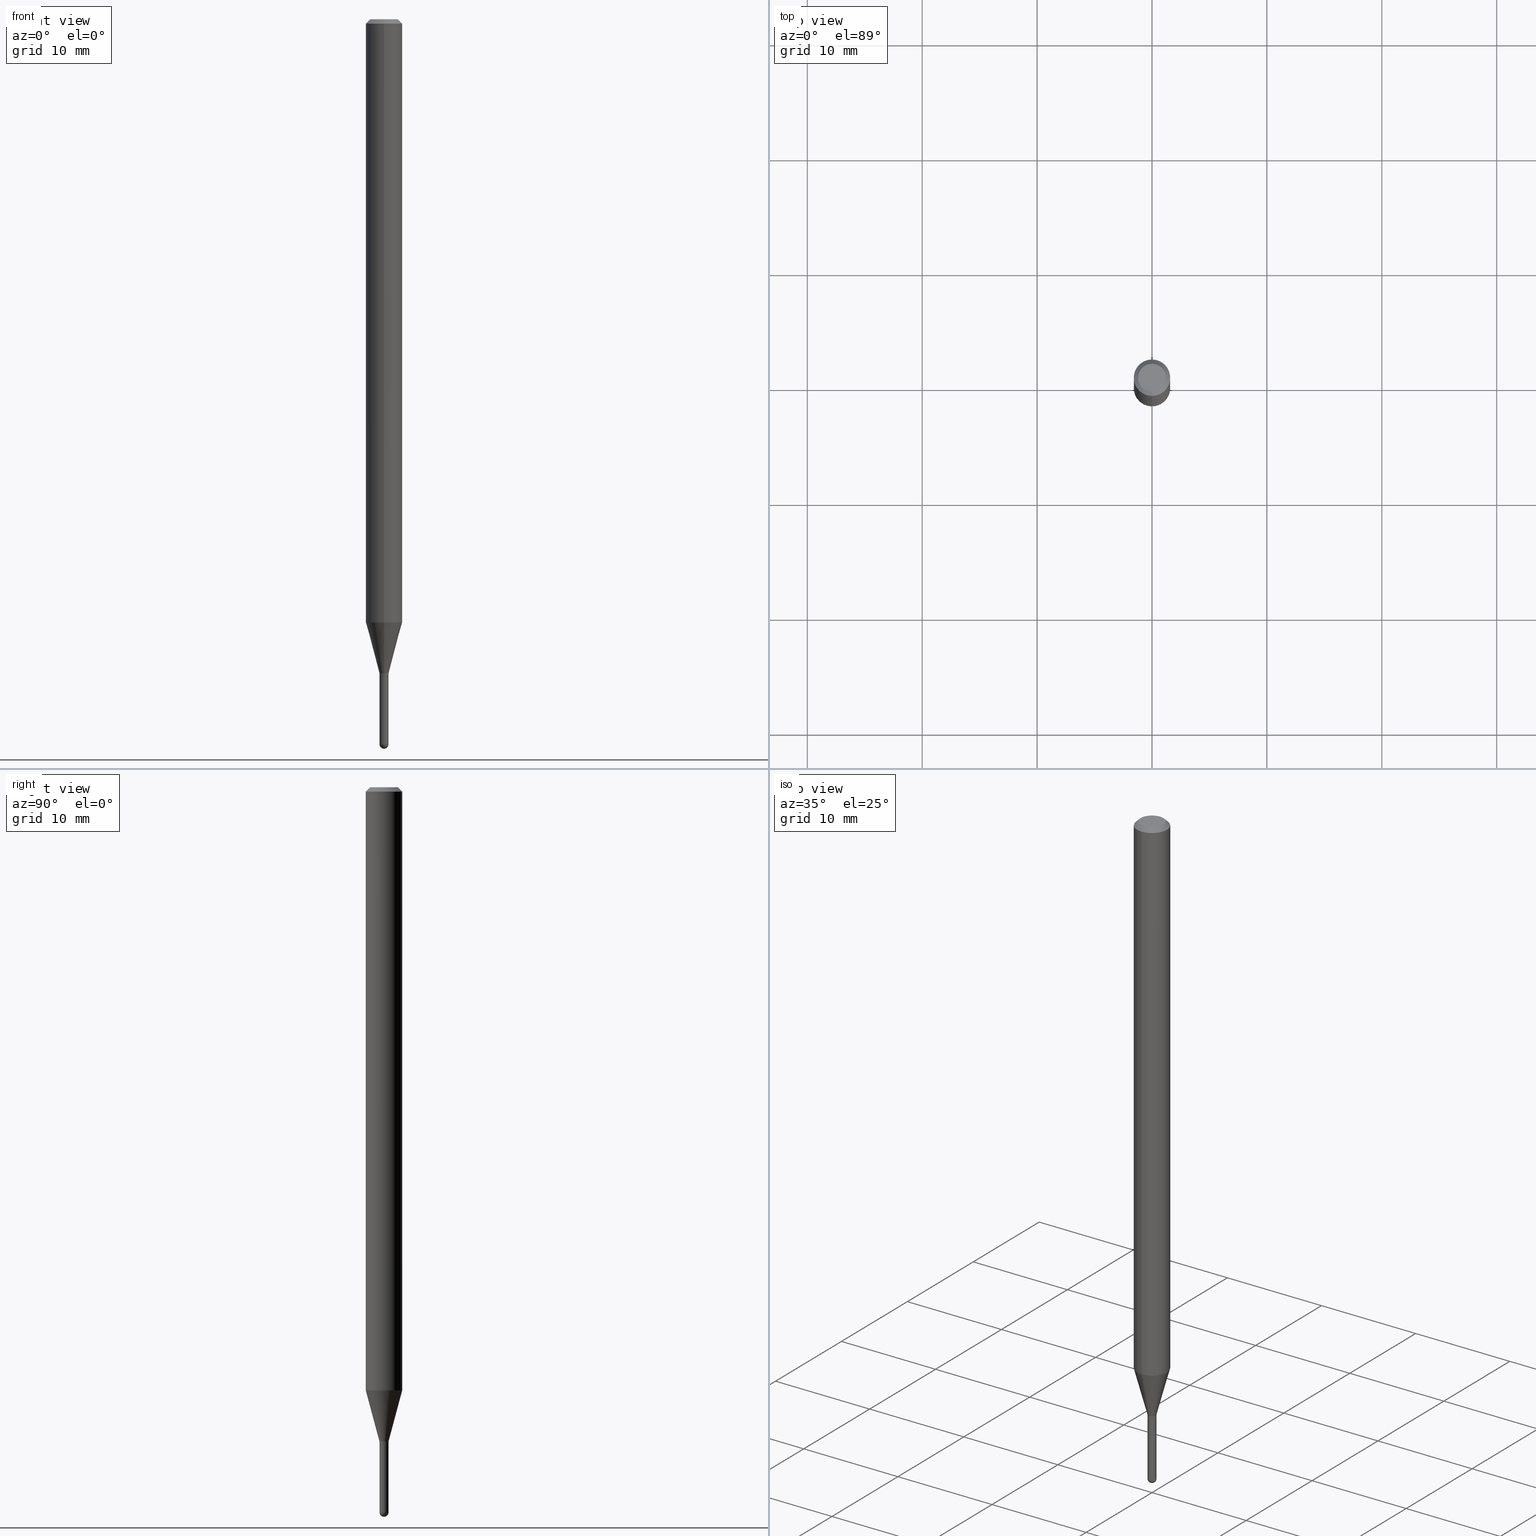
[diagram: canonical four-view strip — front | top / right | iso, engineering-drawing reading convention]
A machine part, canonical four-view strip (front | top / right | iso — engineering-drawing reading convention). The complete STEP part file that produces these views, byte-faithful:
ISO-10303-21;
HEADER;
FILE_DESCRIPTION (( 'STEP AP203' ),
    '1' );
FILE_NAME ('02752.STEP',
    '2024-03-07T21:13:44',
    ( '' ),
    ( '' ),
    'SwSTEP 2.0',
    'SolidWorks 2023',
    '' );
FILE_SCHEMA (( 'CONFIG_CONTROL_DESIGN' ));
ENDSEC;

DATA;
#1 = ORIENTED_EDGE ( 'NONE', *, *, #382, .F. ) ;
#2 = PERSON ( 'UNSPECIFIED', 'UNSPECIFIED', 'UNSPECIFIED', ('UNSPECIFIED'), ('UNSPECIFIED'), ('UNSPECIFIED') ) ;
#3 = VERTEX_POINT ( 'NONE', #409 ) ;
#4 = PRODUCT ( '02752', '02752', '', ( #423 ) ) ;
#5 = ORIENTED_EDGE ( 'NONE', *, *, #79, .F. ) ;
#6 = CIRCLE ( 'NONE', #80, 0.06250000000000000000 ) ;
#7 = LOCAL_TIME ( 16, 13, 44.00000000000000000, #317 ) ;
#8 = ORIENTED_EDGE ( 'NONE', *, *, #330, .T. ) ;
#9 = CARTESIAN_POINT ( 'NONE',  ( 5.507174884870888320E-29, -7.862845857316731752E-15, -2.251999999999999780 ) ) ;
#10 = ORIENTED_EDGE ( 'NONE', *, *, #213, .T. ) ;
#11 = APPROVAL ( #115, 'UNSPECIFIED' ) ;
#12 = CIRCLE ( 'NONE', #184, 0.04749999999999999362 ) ;
#13 = CC_DESIGN_DATE_AND_TIME_ASSIGNMENT ( #122, #74, ( #390 ) ) ;
#14 = CARTESIAN_POINT ( 'NONE',  ( 6.075767248966972494E-29, -8.674585386355795965E-15, -2.484500000000000153 ) ) ;
#15 = ORIENTED_EDGE ( 'NONE', *, *, #321, .T. ) ;
#16 = APPLICATION_CONTEXT ( 'configuration controlled 3d designs of mechanical parts and assemblies' ) ;
#17 = ORIENTED_EDGE ( 'NONE', *, *, #237, .T. ) ;
#18 = CARTESIAN_POINT ( 'NONE',  ( 4.440892098501133991E-16, 0.06249999999999993755, -0.01500000000000054588 ) ) ;
#19 = CARTESIAN_POINT ( 'NONE',  ( 0.01550000000000000162, -1.082359215041371409E-16, 7.558074002483700794E-31 ) ) ;
#20 = AXIS2_PLACEMENT_3D ( 'NONE', #127, #496, #385 ) ;
#21 = CARTESIAN_POINT ( 'NONE',  ( 0.000000000000000000, 0.000000000000000000, 0.000000000000000000 ) ) ;
#22 = CYLINDRICAL_SURFACE ( 'NONE', #512, 0.01550000000000000162 ) ;
#23 = DIRECTION ( 'NONE',  ( -1.000000000000000000, 6.982962677686265922E-15, -4.883557194083112340E-29 ) ) ;
#24 = CARTESIAN_POINT ( 'NONE',  ( -1.082359215040799855E-16, -0.01550000000000756502, -2.251500000000000501 ) ) ;
#25 = DIRECTION ( 'NONE',  ( -6.982962677686265922E-15, -1.000000000000000000, 0.000000000000000000 ) ) ;
#26 = ADVANCED_FACE ( 'NONE', ( #50 ), #93, .F. ) ;
#27 = PERSON_AND_ORGANIZATION ( #2, #46 ) ;
#28 = AXIS2_PLACEMENT_3D ( 'NONE', #116, #355, #82 ) ;
#29 = EDGE_CURVE ( 'NONE', #136, #60, #338, .T. ) ;
#30 = DIRECTION ( 'NONE',  ( -6.982962677686265922E-15, -1.000000000000000000, 0.000000000000000000 ) ) ;
#31 = CARTESIAN_POINT ( 'NONE',  ( 3.668189310526870612E-31, -5.237241912067210994E-17, -0.01500000000000032904 ) ) ;
#32 = PERSON_AND_ORGANIZATION ( #2, #46 ) ;
#33 = ADVANCED_FACE ( 'NONE', ( #342 ), #22, .T. ) ;
#34 = DIRECTION ( 'NONE',  ( -6.982962677686265922E-15, -1.000000000000000000, 4.370956789862821150E-15 ) ) ;
#35 = PERSON_AND_ORGANIZATION_ROLE ( 'classification_officer' ) ;
#36 = CARTESIAN_POINT ( 'NONE',  ( 4.364351673553919652E-16, 0.06249999999999995143, -0.01500000000000054588 ) ) ;
#37 = VECTOR ( 'NONE', #250, 39.37007874015748143 ) ;
#38 = CIRCLE ( 'NONE', #367, 0.01550000000000000336 ) ;
#39 = CARTESIAN_POINT ( 'NONE',  ( 5.505952155100712450E-29, -7.861100110012711568E-15, -2.251500000000000501 ) ) ;
#40 = EDGE_CURVE ( 'NONE', #254, #178, #12, .T. ) ;
#41 = ORIENTED_EDGE ( 'NONE', *, *, #382, .T. ) ;
#42 = CARTESIAN_POINT ( 'NONE',  ( -1.082359215040798499E-16, -0.01550000000000747828, -2.241999999999999993 ) ) ;
#43 = ORIENTED_EDGE ( 'NONE', *, *, #166, .T. ) ;
#44 = ORIENTED_EDGE ( 'NONE', *, *, #349, .T. ) ;
#45 = DIRECTION ( 'NONE',  ( -2.445459540351193417E-29, 3.491494608044730760E-15, 1.000000000000000000 ) ) ;
#46 = ORGANIZATION ( 'UNSPECIFIED', 'UNSPECIFIED', '' ) ;
#47 = CIRCLE ( 'NONE', #120, 0.01550000000000000336 ) ;
#48 = CC_DESIGN_SECURITY_CLASSIFICATION ( #390, ( #438 ) ) ;
#49 = ORIENTED_EDGE ( 'NONE', *, *, #370, .F. ) ;
#50 = FACE_OUTER_BOUND ( 'NONE', #256, .T. ) ;
#51 = ORIENTED_EDGE ( 'NONE', *, *, #252, .T. ) ;
#52 = DIRECTION ( 'NONE',  ( -2.445459540351193417E-29, 3.491494608044730760E-15, 1.000000000000000000 ) ) ;
#53 = DIRECTION ( 'NONE',  ( -6.982962677686265922E-15, -1.000000000000000000, 0.000000000000000000 ) ) ;
#54 = ORIENTED_EDGE ( 'NONE', *, *, #159, .T. ) ;
#55 = CARTESIAN_POINT ( 'NONE',  ( 0.000000000000000000, 0.000000000000000000, 0.000000000000000000 ) ) ;
#56 = ORIENTED_EDGE ( 'NONE', *, *, #489, .F. ) ;
#57 = APPLICATION_CONTEXT ( 'configuration controlled 3d designs of mechanical parts and assemblies' ) ;
#58 = VERTEX_POINT ( 'NONE', #379 ) ;
#59 = CALENDAR_DATE ( 2024, 7, 3 ) ;
#60 = VERTEX_POINT ( 'NONE', #18 ) ;
#61 = DIRECTION ( 'NONE',  ( 6.982962677686265133E-15, 1.000000000000000000, 0.000000000000000000 ) ) ;
#62 = EDGE_CURVE ( 'NONE', #172, #165, #143, .T. ) ;
#63 = AXIS2_PLACEMENT_3D ( 'NONE', #14, #138, #452 ) ;
#64 = CARTESIAN_POINT ( 'NONE',  ( 1.101341240428130259E-16, 0.01549999999999964947, -5.411816642469210326E-17 ) ) ;
#65 = APPROVAL_STATUS ( 'not_yet_approved' ) ;
#66 = DIRECTION ( 'NONE',  ( -2.445468806185136877E-29, 3.491481338843145188E-15, 1.000000000000000000 ) ) ;
#67 = DIRECTION ( 'NONE',  ( -6.982962677686265922E-15, -1.000000000000000000, 3.483106191921935554E-15 ) ) ;
#68 = EDGE_CURVE ( 'NONE', #432, #247, #185, .T. ) ;
#69 = AXIS2_PLACEMENT_3D ( 'NONE', #119, #114, #233 ) ;
#70 = CARTESIAN_POINT ( 'NONE',  ( 6.075767248966972494E-29, -8.674585386355795965E-15, -2.484500000000000153 ) ) ;
#71 = PERSON_AND_ORGANIZATION ( #2, #46 ) ;
#72 = FACE_OUTER_BOUND ( 'NONE', #453, .T. ) ;
#73 = DIRECTION ( 'NONE',  ( 6.982962677686265922E-15, 1.000000000000000000, 0.000000000000000000 ) ) ;
#74 = DATE_TIME_ROLE ( 'classification_date' ) ;
#75 = CARTESIAN_POINT ( 'NONE',  ( 8.024685425782837780E-45, -1.145721097939416825E-30, -3.281463174250844337E-16 ) ) ;
#76 = APPLICATION_PROTOCOL_DEFINITION ( 'international standard', 'config_control_design', 1994, #16 ) ;
#77 = DIRECTION ( 'NONE',  ( -6.982962677686265922E-15, -1.000000000000000000, 3.491494608044730760E-15 ) ) ;
#78 = DIRECTION ( 'NONE',  ( -2.445459540351193417E-29, 3.491494608044730760E-15, 1.000000000000000000 ) ) ;
#79 = EDGE_CURVE ( 'NONE', #253, #165, #292, .T. ) ;
#80 = AXIS2_PLACEMENT_3D ( 'NONE', #118, #505, #509 ) ;
#81 = CIRCLE ( 'NONE', #222, 0.01549999999999964947 ) ;
#82 = DIRECTION ( 'NONE',  ( -6.982962677686265922E-15, -1.000000000000000000, 3.491494608044730760E-15 ) ) ;
#83 = ORIENTED_EDGE ( 'NONE', *, *, #124, .F. ) ;
#84 = ORIENTED_EDGE ( 'NONE', *, *, #447, .T. ) ;
#85 = EDGE_LOOP ( 'NONE', ( #49, #445, #54, #87 ) ) ;
#86 = EDGE_CURVE ( 'NONE', #133, #369, #219, .T. ) ;
#87 = ORIENTED_EDGE ( 'NONE', *, *, #349, .F. ) ;
#88 = EDGE_LOOP ( 'NONE', ( #15, #331, #175, #336 ) ) ;
#89 = CIRCLE ( 'NONE', #384, 0.01549999999999964947 ) ;
#90 = EDGE_LOOP ( 'NONE', ( #170, #207, #451, #428, #401 ) ) ;
#91 =( CONVERSION_BASED_UNIT ( 'INCH', #218 ) LENGTH_UNIT ( ) NAMED_UNIT ( #92 ) );
#92 = DIMENSIONAL_EXPONENTS ( 1.000000000000000000, 0.000000000000000000, 0.000000000000000000, 0.000000000000000000, 0.000000000000000000, 0.000000000000000000, 0.000000000000000000 ) ;
#93 = PLANE ( 'NONE',  #20 ) ;
#94 = DIRECTION ( 'NONE',  ( -1.807323732225329745E-15, -0.2588190451025181305, 0.9659258262890689783 ) ) ;
#95 = ORIENTED_EDGE ( 'NONE', *, *, #149, .T. ) ;
#96 = CARTESIAN_POINT ( 'NONE',  ( 0.000000000000000000, 0.000000000000000000, 0.000000000000000000 ) ) ;
#97 = EDGE_CURVE ( 'NONE', #287, #206, #359, .T. ) ;
#98 = DIRECTION ( 'NONE',  ( -2.445468806185136597E-29, 3.491481338843145583E-15, 1.000000000000000000 ) ) ;
#99 = DATE_AND_TIME ( #59, #475 ) ;
#100 = ADVANCED_FACE ( 'NONE', ( #144 ), #227, .T. ) ;
#101 = DIRECTION ( 'NONE',  ( -2.445459540351193417E-29, 3.491494608044730760E-15, 1.000000000000000000 ) ) ;
#102 = FACE_OUTER_BOUND ( 'NONE', #416, .T. ) ;
#103 = FACE_OUTER_BOUND ( 'NONE', #288, .T. ) ;
#104 = PRODUCT_DEFINITION ( 'UNKNOWN', '', #438, #164 ) ;
#105 = CONICAL_SURFACE ( 'NONE', #192, 0.01499999999999999944, 0.7853981633974739252 ) ;
#106 = CC_DESIGN_APPROVAL ( #461, ( #438 ) ) ;
#107 = CARTESIAN_POINT ( 'NONE',  ( 5.482720289467375391E-29, -7.827930911236285466E-15, -2.241999999999999993 ) ) ;
#108 = ORIENTED_EDGE ( 'NONE', *, *, #29, .F. ) ;
#109 = CC_DESIGN_PERSON_AND_ORGANIZATION_ASSIGNMENT ( #508, #35, ( #390 ) ) ;
#110 = CARTESIAN_POINT ( 'NONE',  ( 1.101341240428678394E-16, 0.01549999999999182067, -2.241999999999999993 ) ) ;
#111 = DIRECTION ( 'NONE',  ( -6.982962677686265922E-15, -1.000000000000000000, 0.000000000000000000 ) ) ;
#112 = DATE_AND_TIME ( #160, #117 ) ;
#113 = DIRECTION ( 'NONE',  ( 1.000000000000000000, -6.982962677686238312E-15, 0.000000000000000000 ) ) ;
#114 = DIRECTION ( 'NONE',  ( -2.445459540351193417E-29, 3.491494608044730760E-15, 1.000000000000000000 ) ) ;
#115 = APPROVAL_STATUS ( 'not_yet_approved' ) ;
#116 = CARTESIAN_POINT ( 'NONE',  ( 0.000000000000000000, 0.000000000000000000, 0.000000000000000000 ) ) ;
#117 = LOCAL_TIME ( 16, 13, 44.00000000000000000, #427 ) ;
#118 = CARTESIAN_POINT ( 'NONE',  ( 5.053771064602474327E-29, -7.215500453472225430E-15, -2.066593612044262063 ) ) ;
#119 = CARTESIAN_POINT ( 'NONE',  ( 5.507174884870888320E-29, -7.862845857316731752E-15, -2.251999999999999780 ) ) ;
#120 = AXIS2_PLACEMENT_3D ( 'NONE', #485, #383, #419 ) ;
#121 = ADVANCED_FACE ( 'NONE', ( #263 ), #228, .T. ) ;
#122 = DATE_AND_TIME ( #471, #7 ) ;
#123 = DIRECTION ( 'NONE',  ( -6.982962677686265922E-15, -1.000000000000000000, 0.000000000000000000 ) ) ;
#124 = EDGE_CURVE ( 'NONE', #133, #146, #318, .T. ) ;
#125 = FACE_OUTER_BOUND ( 'NONE', #85, .T. ) ;
#126 = LINE ( 'NONE', #282, #177 ) ;
#127 = CARTESIAN_POINT ( 'NONE',  ( 5.507174884870888320E-29, -7.862845857316731752E-15, -2.251999999999999780 ) ) ;
#128 = CARTESIAN_POINT ( 'NONE',  ( 6.113009261588727732E-29, -8.729652448377203187E-15, -2.500000000000000000 ) ) ;
#129 = AXIS2_PLACEMENT_3D ( 'NONE', #265, #257, #53 ) ;
#130 = ORIENTED_EDGE ( 'NONE', *, *, #149, .F. ) ;
#131 = CYLINDRICAL_SURFACE ( 'NONE', #455, 0.06250000000000000000 ) ;
#132 = ADVANCED_FACE ( 'NONE', ( #103 ), #168, .T. ) ;
#133 = VERTEX_POINT ( 'NONE', #375 ) ;
#134 = ORIENTED_EDGE ( 'NONE', *, *, #489, .T. ) ;
#135 = AXIS2_PLACEMENT_3D ( 'NONE', #147, #101, #488 ) ;
#136 = VERTEX_POINT ( 'NONE', #242 ) ;
#137 = ADVANCED_FACE ( 'NONE', ( #203 ), #131, .T. ) ;
#138 = DIRECTION ( 'NONE',  ( -2.445468806185136597E-29, 3.491481338843145583E-15, 1.000000000000000000 ) ) ;
#139 = ORIENTED_EDGE ( 'NONE', *, *, #62, .F. ) ;
#140 = DIRECTION ( 'NONE',  ( -2.445468806185136597E-29, 3.491481338843145583E-15, 1.000000000000000000 ) ) ;
#141 = SHAPE_DEFINITION_REPRESENTATION ( #441, #212 ) ;
#142 = ORIENTED_EDGE ( 'NONE', *, *, #361, .T. ) ;
#143 = CIRCLE ( 'NONE', #251, 0.01549999999999966682 ) ;
#144 = FACE_OUTER_BOUND ( 'NONE', #174, .T. ) ;
#145 =( GEOMETRIC_REPRESENTATION_CONTEXT ( 3 ) GLOBAL_UNCERTAINTY_ASSIGNED_CONTEXT ( ( #421 ) ) GLOBAL_UNIT_ASSIGNED_CONTEXT ( ( #91, #410, #450 ) ) REPRESENTATION_CONTEXT ( 'NONE', 'WORKASPACE' ) );
#146 = VERTEX_POINT ( 'NONE', #444 ) ;
#147 = CARTESIAN_POINT ( 'NONE',  ( 5.482720289467375391E-29, -7.827930911236285466E-15, -2.241999999999999993 ) ) ;
#148 = FACE_OUTER_BOUND ( 'NONE', #365, .T. ) ;
#149 = EDGE_CURVE ( 'NONE', #58, #432, #171, .T. ) ;
#150 = DIRECTION ( 'NONE',  ( -6.982962677686265922E-15, -1.000000000000000000, 0.000000000000000000 ) ) ;
#151 = APPROVAL_STATUS ( 'not_yet_approved' ) ;
#152 = CIRCLE ( 'NONE', #258, 0.06250000000000000000 ) ;
#153 = DIRECTION ( 'NONE',  ( -2.445468806185136597E-29, 3.491481338843145583E-15, 1.000000000000000000 ) ) ;
#154 = CARTESIAN_POINT ( 'NONE',  ( -1.047444401652389135E-16, -0.01500000000000786295, -2.251999999999999780 ) ) ;
#155 = CARTESIAN_POINT ( 'NONE',  ( 3.668189310526870612E-31, -5.237241912067210994E-17, -0.01500000000000032904 ) ) ;
#156 = PERSON_AND_ORGANIZATION_ROLE ( 'creator' ) ;
#157 = DIRECTION ( 'NONE',  ( -6.982962677686265922E-15, -1.000000000000000000, 3.483106191921935554E-15 ) ) ;
#158 = DIRECTION ( 'NONE',  ( -4.851104656540964275E-15, -0.7071067811865500152, -0.7071067811865450192 ) ) ;
#159 = EDGE_CURVE ( 'NONE', #474, #58, #217, .T. ) ;
#160 = CALENDAR_DATE ( 2024, 7, 3 ) ;
#161 = DIRECTION ( 'NONE',  ( -6.982962677686266711E-15, -1.000000000000000000, 3.491494608044731155E-15 ) ) ;
#162 = CIRCLE ( 'NONE', #299, 0.06250000000000000000 ) ;
#163 = APPLICATION_PROTOCOL_DEFINITION ( 'international standard', 'config_control_design', 1994, #57 ) ;
#164 = DESIGN_CONTEXT ( 'detailed design', #57, 'design' ) ;
#165 = VERTEX_POINT ( 'NONE', #368 ) ;
#166 = EDGE_CURVE ( 'NONE', #206, #3, #407, .T. ) ;
#167 = ORIENTED_EDGE ( 'NONE', *, *, #97, .T. ) ;
#168 = CONICAL_SURFACE ( 'NONE', #129, 0.01499999999999999944, 0.7853981633974739252 ) ;
#169 = CIRCLE ( 'NONE', #377, 0.01549999999999999989 ) ;
#170 = ORIENTED_EDGE ( 'NONE', *, *, #86, .F. ) ;
#171 = LINE ( 'NONE', #42, #420 ) ;
#172 = VERTEX_POINT ( 'NONE', #128 ) ;
#173 =( LENGTH_UNIT ( ) NAMED_UNIT ( * ) SI_UNIT ( $, .METRE. ) );
#174 = EDGE_LOOP ( 'NONE', ( #142, #17, #439, #130 ) ) ;
#175 = ORIENTED_EDGE ( 'NONE', *, *, #361, .F. ) ;
#176 = EDGE_LOOP ( 'NONE', ( #371, #41, #216, #341 ) ) ;
#177 = VECTOR ( 'NONE', #319, 39.37007874015748143 ) ;
#178 = VERTEX_POINT ( 'NONE', #402 ) ;
#179 = DIRECTION ( 'NONE',  ( 1.000000000000000000, -6.982962677686265922E-15, 4.883557194083112340E-29 ) ) ;
#180 = APPROVAL_ROLE ( '' ) ;
#181 = DIRECTION ( 'NONE',  ( -2.445459540351193417E-29, 3.491494608044730760E-15, 1.000000000000000000 ) ) ;
#182 = EDGE_CURVE ( 'NONE', #3, #474, #283, .T. ) ;
#183 = ORIENTED_EDGE ( 'NONE', *, *, #223, .T. ) ;
#184 = AXIS2_PLACEMENT_3D ( 'NONE', #381, #491, #186 ) ;
#185 = LINE ( 'NONE', #494, #437 ) ;
#186 = DIRECTION ( 'NONE',  ( -6.982962677686266711E-15, -1.000000000000000000, 3.491494608044731155E-15 ) ) ;
#187 = PLANE ( 'NONE',  #309 ) ;
#188 = CARTESIAN_POINT ( 'NONE',  ( 1.082359215041921886E-16, 0.01549999999999213639, -2.252000000000000224 ) ) ;
#189 = ADVANCED_FACE ( 'NONE', ( #210 ), #105, .T. ) ;
#190 = CIRCLE ( 'NONE', #490, 0.01549999999999966682 ) ;
#191 = DIRECTION ( 'NONE',  ( 0.000000000000000000, 0.000000000000000000, 1.000000000000000000 ) ) ;
#192 = AXIS2_PLACEMENT_3D ( 'NONE', #9, #497, #25 ) ;
#193 = CONICAL_SURFACE ( 'NONE', #275, 0.01549999999999964947, 0.2617993877991502405 ) ;
#194 = CARTESIAN_POINT ( 'NONE',  ( 3.668189310526870612E-31, -5.237241912067210994E-17, -0.01500000000000032904 ) ) ;
#195 = FACE_OUTER_BOUND ( 'NONE', #326, .T. ) ;
#196 = DIRECTION ( 'NONE',  ( 1.839019923739599921E-15, 0.2588190451025249028, 0.9659258262890670910 ) ) ;
#197 = LINE ( 'NONE', #353, #261 ) ;
#198 = PERSON_AND_ORGANIZATION_ROLE ( 'design_supplier' ) ;
#199 = DIRECTION ( 'NONE',  ( -1.000000000000000000, 7.105427357601001070E-15, -4.926315508542082329E-29 ) ) ;
#200 = PERSON_AND_ORGANIZATION ( #2, #46 ) ;
#201 = CARTESIAN_POINT ( 'NONE',  ( 0.000000000000000000, 0.000000000000000000, 0.000000000000000000 ) ) ;
#202 = CIRCLE ( 'NONE', #405, 0.06250000000000000000 ) ;
#203 = FACE_OUTER_BOUND ( 'NONE', #442, .T. ) ;
#204 = CC_DESIGN_PERSON_AND_ORGANIZATION_ASSIGNMENT ( #27, #272, ( #4 ) ) ;
#205 = APPROVAL_ROLE ( '' ) ;
#206 = VERTEX_POINT ( 'NONE', #232 ) ;
#207 = ORIENTED_EDGE ( 'NONE', *, *, #124, .T. ) ;
#208 = ORIENTED_EDGE ( 'NONE', *, *, #400, .T. ) ;
#209 = AXIS2_PLACEMENT_3D ( 'NONE', #470, #23, #73 ) ;
#210 = FACE_OUTER_BOUND ( 'NONE', #176, .T. ) ;
#211 = AXIS2_PLACEMENT_3D ( 'NONE', #201, #397, #238 ) ;
#212 = ADVANCED_BREP_SHAPE_REPRESENTATION ( '02752', ( #301, #295, #277 ), #145 ) ;
#213 = EDGE_CURVE ( 'NONE', #247, #60, #202, .T. ) ;
#214 = ORIENTED_EDGE ( 'NONE', *, *, #86, .T. ) ;
#215 = CARTESIAN_POINT ( 'NONE',  ( 1.065814103640700963E-16, 0.01499999999999213768, -2.251999999999999780 ) ) ;
#216 = ORIENTED_EDGE ( 'NONE', *, *, #274, .T. ) ;
#217 = LINE ( 'NONE', #480, #37 ) ;
#218 = LENGTH_MEASURE_WITH_UNIT ( LENGTH_MEASURE( 0.02539999999999999897 ), #173 );
#219 = LINE ( 'NONE', #337, #244 ) ;
#220 = ADVANCED_FACE ( 'NONE', ( #350 ), #484, .T. ) ;
#221 = CLOSED_SHELL ( 'NONE', ( #506, #132, #220, #137, #100, #499, #313, #440, #430, #26, #189, #511 ) ) ;
#222 = AXIS2_PLACEMENT_3D ( 'NONE', #357, #386, #467 ) ;
#223 = EDGE_CURVE ( 'NONE', #178, #254, #396, .T. ) ;
#224 = DIRECTION ( 'NONE',  ( -2.445468806185136877E-29, 3.491481338843145188E-15, 1.000000000000000000 ) ) ;
#225 = DIRECTION ( 'NONE',  ( -2.445459540351193137E-29, 3.491494608044730760E-15, 1.000000000000000000 ) ) ;
#226 = ORIENTED_EDGE ( 'NONE', *, *, #483, .F. ) ;
#227 = CONICAL_SURFACE ( 'NONE', #135, 0.01549999999999964947, 0.2617993877991502405 ) ;
#228 = CYLINDRICAL_SURFACE ( 'NONE', #503, 0.01550000000000000162 ) ;
#229 = DIRECTION ( 'NONE',  ( -7.105427357601001070E-15, -1.000000000000000000, 0.000000000000000000 ) ) ;
#230 = FACE_OUTER_BOUND ( 'NONE', #286, .T. ) ;
#231 = CALENDAR_DATE ( 2024, 7, 3 ) ;
#232 = CARTESIAN_POINT ( 'NONE',  ( 1.083577672034691034E-16, 0.01499999999999213768, -2.251999999999999780 ) ) ;
#233 = DIRECTION ( 'NONE',  ( -6.982962677686265922E-15, -1.000000000000000000, 0.000000000000000000 ) ) ;
#234 = COORDINATED_UNIVERSAL_TIME_OFFSET ( 5, 0, .BEHIND. ) ;
#235 = CIRCLE ( 'NONE', #477, 0.01549999999999999989 ) ;
#236 = AXIS2_PLACEMENT_3D ( 'NONE', #398, #431, #77 ) ;
#237 = EDGE_CURVE ( 'NONE', #324, #136, #436, .T. ) ;
#238 = DIRECTION ( 'NONE',  ( -6.982962677686265922E-15, -1.000000000000000000, 3.491494608044730760E-15 ) ) ;
#239 = LINE ( 'NONE', #64, #425 ) ;
#240 = CARTESIAN_POINT ( 'NONE',  ( 2.771116669464905946E-16, 0.01549999999999181893, -2.241999999999999993 ) ) ;
#241 = APPROVAL_DATE_TIME ( #268, #11 ) ;
#242 = CARTESIAN_POINT ( 'NONE',  ( 4.440892098501128074E-16, 0.06249999999999276273, -2.066593612044262507 ) ) ;
#243 = CARTESIAN_POINT ( 'NONE',  ( 6.074441741218744974E-29, -8.676483588894474032E-15, -2.484500000000000153 ) ) ;
#244 = VECTOR ( 'NONE', #224, 39.37007874015748143 ) ;
#245 = CC_DESIGN_PERSON_AND_ORGANIZATION_ASSIGNMENT ( #71, #429, ( #438 ) ) ;
#246 = AXIS2_PLACEMENT_3D ( 'NONE', #31, #387, #460 ) ;
#247 = VERTEX_POINT ( 'NONE', #469 ) ;
#248 = DIRECTION ( 'NONE',  ( 5.024295867788190974E-15, 0.7071067811865681119, 0.7071067811865270336 ) ) ;
#249 = ORIENTED_EDGE ( 'NONE', *, *, #400, .F. ) ;
#250 = DIRECTION ( 'NONE',  ( -2.445459540351193137E-29, 3.491494608044730760E-15, 1.000000000000000000 ) ) ;
#251 = AXIS2_PLACEMENT_3D ( 'NONE', #412, #179, #61 ) ;
#252 = EDGE_CURVE ( 'NONE', #369, #262, #235, .T. ) ;
#253 = VERTEX_POINT ( 'NONE', #502 ) ;
#254 = VERTEX_POINT ( 'NONE', #311 ) ;
#255 = CC_DESIGN_PERSON_AND_ORGANIZATION_ASSIGNMENT ( #394, #156, ( #104 ) ) ;
#256 = EDGE_LOOP ( 'NONE', ( #294, #1 ) ) ;
#257 = DIRECTION ( 'NONE',  ( -2.445459540351193417E-29, 3.491494608044730760E-15, 1.000000000000000000 ) ) ;
#258 = AXIS2_PLACEMENT_3D ( 'NONE', #315, #78, #34 ) ;
#259 = APPROVAL_DATE_TIME ( #99, #304 ) ;
#260 = ORIENTED_EDGE ( 'NONE', *, *, #290, .T. ) ;
#261 = VECTOR ( 'NONE', #158, 39.37007874015748143 ) ;
#262 = VERTEX_POINT ( 'NONE', #356 ) ;
#263 = FACE_OUTER_BOUND ( 'NONE', #479, .T. ) ;
#264 = AXIS2_PLACEMENT_3D ( 'NONE', #75, #391, #161 ) ;
#265 = CARTESIAN_POINT ( 'NONE',  ( 5.507174884870888320E-29, -7.862845857316731752E-15, -2.251999999999999780 ) ) ;
#266 = EDGE_CURVE ( 'NONE', #146, #253, #38, .T. ) ;
#267 = CARTESIAN_POINT ( 'NONE',  ( 6.074441741218744974E-29, -8.676483588894474032E-15, -2.484500000000000153 ) ) ;
#268 = DATE_AND_TIME ( #347, #406 ) ;
#269 = DIRECTION ( 'NONE',  ( -2.445459540351193417E-29, 3.491494608044730760E-15, 1.000000000000000000 ) ) ;
#270 = CYLINDRICAL_SURFACE ( 'NONE', #211, 0.06250000000000000000 ) ;
#271 = DIRECTION ( 'NONE',  ( -2.445459540351193417E-29, 3.491494608044730760E-15, 1.000000000000000000 ) ) ;
#272 = PERSON_AND_ORGANIZATION_ROLE ( 'design_owner' ) ;
#273 = CARTESIAN_POINT ( 'NONE',  ( 3.668189310526870612E-31, -5.237241912067210994E-17, -0.01500000000000032904 ) ) ;
#274 = EDGE_CURVE ( 'NONE', #287, #474, #126, .T. ) ;
#275 = AXIS2_PLACEMENT_3D ( 'NONE', #310, #269, #30 ) ;
#276 = VECTOR ( 'NONE', #456, 39.37007874015748143 ) ;
#277 = AXIS2_PLACEMENT_3D ( 'NONE', #21, #191, #280 ) ;
#278 = DIRECTION ( 'NONE',  ( 6.982962677686265922E-15, 1.000000000000000000, 0.000000000000000000 ) ) ;
#279 = FACE_OUTER_BOUND ( 'NONE', #372, .T. ) ;
#280 = DIRECTION ( 'NONE',  ( 1.000000000000000000, 0.000000000000000000, 0.000000000000000000 ) ) ;
#281 = APPROVAL_ROLE ( '' ) ;
#282 = CARTESIAN_POINT ( 'NONE',  ( -1.047444401652389135E-16, -0.01500000000000786295, -2.251999999999999780 ) ) ;
#283 = CIRCLE ( 'NONE', #426, 0.01549999999999965121 ) ;
#284 = EDGE_CURVE ( 'NONE', #432, #136, #6, .T. ) ;
#285 = APPROVAL_PERSON_ORGANIZATION ( #200, #304, #180 ) ;
#286 = EDGE_LOOP ( 'NONE', ( #139, #208, #83, #443 ) ) ;
#287 = VERTEX_POINT ( 'NONE', #154 ) ;
#288 = EDGE_LOOP ( 'NONE', ( #167, #43, #380, #399 ) ) ;
#289 = PRODUCT_RELATED_PRODUCT_CATEGORY ( 'detail', '', ( #4 ) ) ;
#290 = EDGE_CURVE ( 'NONE', #136, #432, #152, .T. ) ;
#291 = ORIENTED_EDGE ( 'NONE', *, *, #328, .F. ) ;
#292 = CIRCLE ( 'NONE', #63, 0.01550000000000000336 ) ;
#293 = ORIENTED_EDGE ( 'NONE', *, *, #284, .T. ) ;
#294 = ORIENTED_EDGE ( 'NONE', *, *, #97, .F. ) ;
#295 = MANIFOLD_SOLID_BREP ( 'Body-Move/Copy2[2]', #221 ) ;
#296 = ORIENTED_EDGE ( 'NONE', *, *, #29, .T. ) ;
#297 = CARTESIAN_POINT ( 'NONE',  ( 5.507174884870888320E-29, -7.862845857316731752E-15, -2.251999999999999780 ) ) ;
#298 = ADVANCED_FACE ( 'NONE', ( #433 ), #424, .T. ) ;
#299 = AXIS2_PLACEMENT_3D ( 'NONE', #273, #271, #67 ) ;
#300 = AXIS2_PLACEMENT_3D ( 'NONE', #297, #181, #150 ) ;
#301 = MANIFOLD_SOLID_BREP ( 'Body-Move/Copy2[1]', #376 ) ;
#302 = DIRECTION ( 'NONE',  ( -2.445459540351193137E-29, 3.491494608044730760E-15, 1.000000000000000000 ) ) ;
#303 = CARTESIAN_POINT ( 'NONE',  ( -4.364351673553412316E-16, -0.06250000000000721645, -2.066593612044261619 ) ) ;
#304 = APPROVAL ( #151, 'UNSPECIFIED' ) ;
#305 = CARTESIAN_POINT ( 'NONE',  ( 6.075767248966972494E-29, -8.674585386355795965E-15, -2.484500000000000153 ) ) ;
#306 = DIRECTION ( 'NONE',  ( -2.445459540351193137E-29, 3.491494608044730760E-15, 1.000000000000000000 ) ) ;
#307 = VECTOR ( 'NONE', #196, 39.37007874015748143 ) ;
#308 = DATE_TIME_ROLE ( 'creation_date' ) ;
#309 = AXIS2_PLACEMENT_3D ( 'NONE', #188, #345, #373 ) ;
#310 = CARTESIAN_POINT ( 'NONE',  ( 5.482720289467375391E-29, -7.827930911236285466E-15, -2.241999999999999993 ) ) ;
#311 = CARTESIAN_POINT ( 'NONE',  ( -3.773273898774340269E-16, -0.04749999999999999362, -1.623003235429596939E-16 ) ) ;
#312 = DIRECTION ( 'NONE',  ( 6.982962677686265922E-15, 1.000000000000000000, -3.483106191921935554E-15 ) ) ;
#313 = ADVANCED_FACE ( 'NONE', ( #72 ), #270, .T. ) ;
#314 = PERSON_AND_ORGANIZATION ( #2, #46 ) ;
#315 = CARTESIAN_POINT ( 'NONE',  ( 5.053771064602474327E-29, -7.215500453472225430E-15, -2.066593612044262063 ) ) ;
#316 = DIRECTION ( 'NONE',  ( -2.445459540351193417E-29, 3.491494608044730760E-15, 1.000000000000000000 ) ) ;
#317 = COORDINATED_UNIVERSAL_TIME_OFFSET ( 5, 0, .BEHIND. ) ;
#318 = CIRCLE ( 'NONE', #340, 0.01550000000000000336 ) ;
#319 = DIRECTION ( 'NONE',  ( -4.937700262164674260E-15, -0.7071067811865632269, 0.7071067811865319186 ) ) ;
#320 = DIRECTION ( 'NONE',  ( -2.445468806185136597E-29, 3.491481338843145583E-15, 1.000000000000000000 ) ) ;
#321 = EDGE_CURVE ( 'NONE', #474, #3, #325, .T. ) ;
#322 = ORIENTED_EDGE ( 'NONE', *, *, #213, .F. ) ;
#323 = ORIENTED_EDGE ( 'NONE', *, *, #62, .T. ) ;
#324 = VERTEX_POINT ( 'NONE', #240 ) ;
#325 = CIRCLE ( 'NONE', #492, 0.01549999999999965121 ) ;
#326 = EDGE_LOOP ( 'NONE', ( #482, #404, #327, #448 ) ) ;
#327 = ORIENTED_EDGE ( 'NONE', *, *, #328, .T. ) ;
#328 = EDGE_CURVE ( 'NONE', #178, #60, #395, .T. ) ;
#329 = ORIENTED_EDGE ( 'NONE', *, *, #40, .F. ) ;
#330 = EDGE_CURVE ( 'NONE', #165, #133, #47, .T. ) ;
#331 = ORIENTED_EDGE ( 'NONE', *, *, #370, .T. ) ;
#332 = EDGE_LOOP ( 'NONE', ( #329, #84, #10, #291 ) ) ;
#333 = VECTOR ( 'NONE', #248, 39.37007874015748143 ) ;
#334 = DIRECTION ( 'NONE',  ( 1.000000000000000000, -6.982962677686266711E-15, 4.876176775795935232E-29 ) ) ;
#335 = CARTESIAN_POINT ( 'NONE',  ( 0.000000000000000000, 0.000000000000000000, 0.000000000000000000 ) ) ;
#336 = ORIENTED_EDGE ( 'NONE', *, *, #159, .F. ) ;
#337 = CARTESIAN_POINT ( 'NONE',  ( -0.01550000000000000162, 1.101341240428155403E-16, -7.624349389895103934E-31 ) ) ;
#338 = LINE ( 'NONE', #459, #464 ) ;
#339 = CC_DESIGN_APPROVAL ( #11, ( #104 ) ) ;
#340 = AXIS2_PLACEMENT_3D ( 'NONE', #305, #98, #462 ) ;
#341 = ORIENTED_EDGE ( 'NONE', *, *, #182, .F. ) ;
#342 = FACE_OUTER_BOUND ( 'NONE', #90, .T. ) ;
#343 = LINE ( 'NONE', #19, #389 ) ;
#344 = DIRECTION ( 'NONE',  ( 2.445459540351193417E-29, -3.491494608044730760E-15, -1.000000000000000000 ) ) ;
#345 = DIRECTION ( 'NONE',  ( 2.438088387897960049E-29, -3.491481338843145188E-15, -1.000000000000000000 ) ) ;
#346 = AXIS2_PLACEMENT_3D ( 'NONE', #243, #472, #278 ) ;
#347 = CALENDAR_DATE ( 2024, 7, 3 ) ;
#348 = AXIS2_PLACEMENT_3D ( 'NONE', #507, #393, #510 ) ;
#349 = EDGE_CURVE ( 'NONE', #324, #58, #89, .T. ) ;
#350 = FACE_OUTER_BOUND ( 'NONE', #332, .T. ) ;
#351 = COORDINATED_UNIVERSAL_TIME_OFFSET ( 5, 0, .BEHIND. ) ;
#352 = DIRECTION ( 'NONE',  ( -2.445468806185136597E-29, 3.491481338843145583E-15, 1.000000000000000000 ) ) ;
#353 = CARTESIAN_POINT ( 'NONE',  ( -4.287811248607203282E-16, -0.06250000000000005551, -0.01500000000000011047 ) ) ;
#354 = SECURITY_CLASSIFICATION_LEVEL ( 'unclassified' ) ;
#355 = DIRECTION ( 'NONE',  ( -2.445459540351193417E-29, 3.491494608044730760E-15, 1.000000000000000000 ) ) ;
#356 = CARTESIAN_POINT ( 'NONE',  ( 0.01549999999999999989, -7.971051896578900839E-15, -2.252000000000000224 ) ) ;
#357 = CARTESIAN_POINT ( 'NONE',  ( 5.482720289467375391E-29, -7.827930911236285466E-15, -2.241999999999999993 ) ) ;
#358 = EDGE_CURVE ( 'NONE', #60, #247, #162, .T. ) ;
#359 = CIRCLE ( 'NONE', #300, 0.01499999999999999944 ) ;
#360 = DIRECTION ( 'NONE',  ( -2.445459540351193417E-29, 3.491494608044730760E-15, 1.000000000000000000 ) ) ;
#361 = EDGE_CURVE ( 'NONE', #58, #324, #81, .T. ) ;
#362 = APPROVAL_DATE_TIME ( #112, #461 ) ;
#363 = ORIENTED_EDGE ( 'NONE', *, *, #68, .F. ) ;
#364 = ORIENTED_EDGE ( 'NONE', *, *, #68, .T. ) ;
#365 = EDGE_LOOP ( 'NONE', ( #487, #44, #95, #476 ) ) ;
#366 = ORIENTED_EDGE ( 'NONE', *, *, #266, .F. ) ;
#367 = AXIS2_PLACEMENT_3D ( 'NONE', #70, #352, #473 ) ;
#368 = CARTESIAN_POINT ( 'NONE',  ( 1.082359215041967246E-16, 0.01549999999999115974, -2.484500000000000153 ) ) ;
#369 = VERTEX_POINT ( 'NONE', #498 ) ;
#370 = EDGE_CURVE ( 'NONE', #3, #324, #239, .T. ) ;
#371 = ORIENTED_EDGE ( 'NONE', *, *, #166, .F. ) ;
#372 = EDGE_LOOP ( 'NONE', ( #183, #415 ) ) ;
#373 = DIRECTION ( 'NONE',  ( -1.000000000000000000, 6.982962677686265922E-15, -4.876176775795935793E-29 ) ) ;
#374 = DIRECTION ( 'NONE',  ( -6.982962677686265922E-15, -1.000000000000000000, 0.000000000000000000 ) ) ;
#375 = CARTESIAN_POINT ( 'NONE',  ( -0.01550000000000000509, -8.158566556672464193E-15, -2.484500000000000153 ) ) ;
#376 = CLOSED_SHELL ( 'NONE', ( #121, #378, #458, #298, #33 ) ) ;
#377 = AXIS2_PLACEMENT_3D ( 'NONE', #501, #153, #495 ) ;
#378 = ADVANCED_FACE ( 'NONE', ( #230 ), #463, .T. ) ;
#379 = CARTESIAN_POINT ( 'NONE',  ( -1.082359215040798499E-16, -0.01550000000000747828, -2.241999999999999993 ) ) ;
#380 = ORIENTED_EDGE ( 'NONE', *, *, #321, .F. ) ;
#381 = CARTESIAN_POINT ( 'NONE',  ( 8.024685425782837780E-45, -1.145721097939416825E-30, -3.281463174250844337E-16 ) ) ;
#382 = EDGE_CURVE ( 'NONE', #206, #287, #413, .T. ) ;
#383 = DIRECTION ( 'NONE',  ( -2.445468806185136597E-29, 3.491481338843145583E-15, 1.000000000000000000 ) ) ;
#384 = AXIS2_PLACEMENT_3D ( 'NONE', #107, #316, #111 ) ;
#385 = DIRECTION ( 'NONE',  ( -6.982962677686265922E-15, -1.000000000000000000, 3.491494608044730760E-15 ) ) ;
#386 = DIRECTION ( 'NONE',  ( -2.445459540351193417E-29, 3.491494608044730760E-15, 1.000000000000000000 ) ) ;
#387 = DIRECTION ( 'NONE',  ( 2.445459540351193417E-29, -3.491494608044730760E-15, -1.000000000000000000 ) ) ;
#388 = CC_DESIGN_PERSON_AND_ORGANIZATION_ASSIGNMENT ( #32, #198, ( #438 ) ) ;
#389 = VECTOR ( 'NONE', #66, 39.37007874015748143 ) ;
#390 = SECURITY_CLASSIFICATION ( '', '', #354 ) ;
#391 = DIRECTION ( 'NONE',  ( -2.445459540351193417E-29, 3.491494608044730760E-15, 1.000000000000000000 ) ) ;
#392 = PLANE ( 'NONE',  #348 ) ;
#393 = DIRECTION ( 'NONE',  ( 2.445459540351193137E-29, -3.491494608044730760E-15, -1.000000000000000000 ) ) ;
#394 = PERSON_AND_ORGANIZATION ( #2, #46 ) ;
#395 = LINE ( 'NONE', #36, #276 ) ;
#396 = CIRCLE ( 'NONE', #264, 0.04749999999999999362 ) ;
#397 = DIRECTION ( 'NONE',  ( -2.445459540351193417E-29, 3.491494608044730760E-15, 1.000000000000000000 ) ) ;
#398 = CARTESIAN_POINT ( 'NONE',  ( 0.000000000000000000, 0.000000000000000000, 0.000000000000000000 ) ) ;
#399 = ORIENTED_EDGE ( 'NONE', *, *, #274, .F. ) ;
#400 = EDGE_CURVE ( 'NONE', #172, #146, #190, .T. ) ;
#401 = ORIENTED_EDGE ( 'NONE', *, *, #252, .F. ) ;
#402 = CARTESIAN_POINT ( 'NONE',  ( 3.840629472727447874E-16, 0.04749999999999999362, -4.939923113072091241E-16 ) ) ;
#403 = CC_DESIGN_APPROVAL ( #304, ( #390 ) ) ;
#404 = ORIENTED_EDGE ( 'NONE', *, *, #223, .F. ) ;
#405 = AXIS2_PLACEMENT_3D ( 'NONE', #155, #360, #157 ) ;
#406 = LOCAL_TIME ( 16, 13, 44.00000000000000000, #351 ) ;
#407 = LINE ( 'NONE', #215, #333 ) ;
#408 = CC_DESIGN_DATE_AND_TIME_ASSIGNMENT ( #434, #308, ( #104 ) ) ;
#409 = CARTESIAN_POINT ( 'NONE',  ( 1.101341240428677408E-16, 0.01549999999999173740, -2.251500000000000501 ) ) ;
#410 =( NAMED_UNIT ( * ) PLANE_ANGLE_UNIT ( ) SI_UNIT ( $, .RADIAN. ) );
#411 = ORIENTED_EDGE ( 'NONE', *, *, #79, .T. ) ;
#412 = CARTESIAN_POINT ( 'NONE',  ( 6.074441741218744974E-29, -8.676483588894474032E-15, -2.484500000000000153 ) ) ;
#413 = CIRCLE ( 'NONE', #69, 0.01499999999999999944 ) ;
#414 = ORIENTED_EDGE ( 'NONE', *, *, #358, .F. ) ;
#415 = ORIENTED_EDGE ( 'NONE', *, *, #40, .T. ) ;
#416 = EDGE_LOOP ( 'NONE', ( #134, #51 ) ) ;
#417 = DIRECTION ( 'NONE',  ( 1.000000000000000000, -6.982962677686266711E-15, 4.876176775795935232E-29 ) ) ;
#418 = FACE_OUTER_BOUND ( 'NONE', #88, .T. ) ;
#419 = DIRECTION ( 'NONE',  ( 1.000000000000000000, -6.982962677686299843E-15, 0.000000000000000000 ) ) ;
#420 = VECTOR ( 'NONE', #94, 39.37007874015748143 ) ;
#421 = UNCERTAINTY_MEASURE_WITH_UNIT (LENGTH_MEASURE( 1.000000000000000082E-05 ), #91, 'distance_accuracy_value', 'NONE');
#422 = DIRECTION ( 'NONE',  ( -2.445459540351193417E-29, 3.491494608044730760E-15, 1.000000000000000000 ) ) ;
#423 = MECHANICAL_CONTEXT ( 'NONE', #16, 'mechanical' ) ;
#424 = SPHERICAL_SURFACE ( 'NONE', #346, 0.01549999999999966682 ) ;
#425 = VECTOR ( 'NONE', #306, 39.37007874015748143 ) ;
#426 = AXIS2_PLACEMENT_3D ( 'NONE', #481, #45, #374 ) ;
#427 = COORDINATED_UNIVERSAL_TIME_OFFSET ( 5, 0, .BEHIND. ) ;
#428 = ORIENTED_EDGE ( 'NONE', *, *, #483, .T. ) ;
#429 = PERSON_AND_ORGANIZATION_ROLE ( 'creator' ) ;
#430 = ADVANCED_FACE ( 'NONE', ( #279 ), #392, .F. ) ;
#431 = DIRECTION ( 'NONE',  ( -2.445459540351193417E-29, 3.491494608044730760E-15, 1.000000000000000000 ) ) ;
#432 = VERTEX_POINT ( 'NONE', #303 ) ;
#433 = FACE_OUTER_BOUND ( 'NONE', #500, .T. ) ;
#434 = DATE_AND_TIME ( #231, #457 ) ;
#435 = CYLINDRICAL_SURFACE ( 'NONE', #236, 0.01549999999999964947 ) ;
#436 = LINE ( 'NONE', #110, #307 ) ;
#437 = VECTOR ( 'NONE', #302, 39.37007874015748143 ) ;
#438 = PRODUCT_DEFINITION_FORMATION_WITH_SPECIFIED_SOURCE ( 'ANY', '', #4, .NOT_KNOWN. ) ;
#439 = ORIENTED_EDGE ( 'NONE', *, *, #284, .F. ) ;
#440 = ADVANCED_FACE ( 'NONE', ( #195 ), #478, .T. ) ;
#441 = PRODUCT_DEFINITION_SHAPE ( 'NONE', 'NONE',  #104 ) ;
#442 = EDGE_LOOP ( 'NONE', ( #293, #296, #322, #363 ) ) ;
#443 = ORIENTED_EDGE ( 'NONE', *, *, #330, .F. ) ;
#444 = CARTESIAN_POINT ( 'NONE',  ( -1.101341240427535901E-16, -0.01550000000000851044, -2.484500000000000153 ) ) ;
#445 = ORIENTED_EDGE ( 'NONE', *, *, #182, .T. ) ;
#446 = AXIS2_PLACEMENT_3D ( 'NONE', #194, #344, #312 ) ;
#447 = EDGE_CURVE ( 'NONE', #254, #247, #197, .T. ) ;
#448 = ORIENTED_EDGE ( 'NONE', *, *, #358, .T. ) ;
#449 = DIRECTION ( 'NONE',  ( -6.982962677686265922E-15, -1.000000000000000000, 3.491494608044730760E-15 ) ) ;
#450 =( NAMED_UNIT ( * ) SI_UNIT ( $, .STERADIAN. ) SOLID_ANGLE_UNIT ( ) );
#451 = ORIENTED_EDGE ( 'NONE', *, *, #266, .T. ) ;
#452 = DIRECTION ( 'NONE',  ( 1.000000000000000000, -6.982962677686299843E-15, 0.000000000000000000 ) ) ;
#453 = EDGE_LOOP ( 'NONE', ( #108, #260, #364, #414 ) ) ;
#454 = APPROVAL_PERSON_ORGANIZATION ( #465, #11, #281 ) ;
#455 = AXIS2_PLACEMENT_3D ( 'NONE', #335, #52, #449 ) ;
#456 = DIRECTION ( 'NONE',  ( 4.937700262164548042E-15, 0.7071067811865451302, -0.7071067811865499042 ) ) ;
#457 = LOCAL_TIME ( 16, 13, 44.00000000000000000, #234 ) ;
#458 = ADVANCED_FACE ( 'NONE', ( #102 ), #187, .F. ) ;
#459 = CARTESIAN_POINT ( 'NONE',  ( 4.440892098500625669E-16, 0.06250000000000000000, -2.182184130027956725E-16 ) ) ;
#460 = DIRECTION ( 'NONE',  ( 6.982962677686265922E-15, 1.000000000000000000, -3.483106191921935554E-15 ) ) ;
#461 = APPROVAL ( #65, 'UNSPECIFIED' ) ;
#462 = DIRECTION ( 'NONE',  ( 1.000000000000000000, -6.982962677686299843E-15, 0.000000000000000000 ) ) ;
#463 = SPHERICAL_SURFACE ( 'NONE', #209, 0.01549999999999966682 ) ;
#464 = VECTOR ( 'NONE', #225, 39.37007874015748143 ) ;
#465 = PERSON_AND_ORGANIZATION ( #2, #46 ) ;
#466 = CARTESIAN_POINT ( 'NONE',  ( 5.507195751528928549E-29, -7.862815975074764463E-15, -2.252000000000000224 ) ) ;
#467 = DIRECTION ( 'NONE',  ( -6.982962677686265922E-15, -1.000000000000000000, 0.000000000000000000 ) ) ;
#468 = CYLINDRICAL_SURFACE ( 'NONE', #28, 0.01549999999999964947 ) ;
#469 = CARTESIAN_POINT ( 'NONE',  ( -4.364351673553912750E-16, -0.06250000000000005551, -0.01500000000000011047 ) ) ;
#470 = CARTESIAN_POINT ( 'NONE',  ( 6.074441741218744974E-29, -8.676483588894474032E-15, -2.484500000000000153 ) ) ;
#471 = CALENDAR_DATE ( 2024, 7, 3 ) ;
#472 = DIRECTION ( 'NONE',  ( -1.000000000000000000, 6.982962677686265922E-15, -4.883557194083112340E-29 ) ) ;
#473 = DIRECTION ( 'NONE',  ( 1.000000000000000000, -6.982962677686299843E-15, 0.000000000000000000 ) ) ;
#474 = VERTEX_POINT ( 'NONE', #24 ) ;
#475 = LOCAL_TIME ( 16, 13, 44.00000000000000000, #493 ) ;
#476 = ORIENTED_EDGE ( 'NONE', *, *, #290, .F. ) ;
#477 = AXIS2_PLACEMENT_3D ( 'NONE', #466, #320, #113 ) ;
#478 = CONICAL_SURFACE ( 'NONE', #246, 0.06250000000000000000, 0.7853981633974483900 ) ;
#479 = EDGE_LOOP ( 'NONE', ( #8, #214, #56, #226, #411 ) ) ;
#480 = CARTESIAN_POINT ( 'NONE',  ( -1.082359215041346757E-16, -0.01549999999999964947, 5.411816642469210326E-17 ) ) ;
#481 = CARTESIAN_POINT ( 'NONE',  ( 5.505952155100712450E-29, -7.861100110012711568E-15, -2.251500000000000501 ) ) ;
#482 = ORIENTED_EDGE ( 'NONE', *, *, #447, .F. ) ;
#483 = EDGE_CURVE ( 'NONE', #253, #262, #343, .T. ) ;
#484 = CONICAL_SURFACE ( 'NONE', #446, 0.06250000000000000000, 0.7853981633974483900 ) ;
#485 = CARTESIAN_POINT ( 'NONE',  ( 6.075767248966972494E-29, -8.674585386355795965E-15, -2.484500000000000153 ) ) ;
#486 = DIRECTION ( 'NONE',  ( -2.445468806185136597E-29, 3.491481338843145583E-15, 1.000000000000000000 ) ) ;
#487 = ORIENTED_EDGE ( 'NONE', *, *, #237, .F. ) ;
#488 = DIRECTION ( 'NONE',  ( -6.982962677686265922E-15, -1.000000000000000000, 0.000000000000000000 ) ) ;
#489 = EDGE_CURVE ( 'NONE', #262, #369, #169, .T. ) ;
#490 = AXIS2_PLACEMENT_3D ( 'NONE', #267, #199, #229 ) ;
#491 = DIRECTION ( 'NONE',  ( -2.445459540351193417E-29, 3.491494608044730760E-15, 1.000000000000000000 ) ) ;
#492 = AXIS2_PLACEMENT_3D ( 'NONE', #39, #422, #123 ) ;
#493 = COORDINATED_UNIVERSAL_TIME_OFFSET ( 5, 0, .BEHIND. ) ;
#494 = CARTESIAN_POINT ( 'NONE',  ( -4.364351673553916201E-16, -0.06250000000000000000, 2.182184130027956725E-16 ) ) ;
#495 = DIRECTION ( 'NONE',  ( 1.000000000000000000, -6.982962677686238312E-15, 0.000000000000000000 ) ) ;
#496 = DIRECTION ( 'NONE',  ( -2.445459540351193137E-29, 3.491494608044730760E-15, 1.000000000000000000 ) ) ;
#497 = DIRECTION ( 'NONE',  ( -2.445459540351193417E-29, 3.491494608044730760E-15, 1.000000000000000000 ) ) ;
#498 = CARTESIAN_POINT ( 'NONE',  ( -0.01549999999999999989, -8.158566556672464193E-15, -2.252000000000000224 ) ) ;
#499 = ADVANCED_FACE ( 'NONE', ( #148 ), #193, .T. ) ;
#500 = EDGE_LOOP ( 'NONE', ( #249, #323, #5, #366 ) ) ;
#501 = CARTESIAN_POINT ( 'NONE',  ( 5.507195751528928549E-29, -7.862815975074764463E-15, -2.252000000000000224 ) ) ;
#502 = CARTESIAN_POINT ( 'NONE',  ( 0.01550000000000000509, -8.376936602219418168E-15, -2.484500000000000153 ) ) ;
#503 = AXIS2_PLACEMENT_3D ( 'NONE', #96, #140, #417 ) ;
#504 = APPROVAL_PERSON_ORGANIZATION ( #314, #461, #205 ) ;
#505 = DIRECTION ( 'NONE',  ( -2.445459540351193417E-29, 3.491494608044730760E-15, 1.000000000000000000 ) ) ;
#506 = ADVANCED_FACE ( 'NONE', ( #418 ), #468, .T. ) ;
#507 = CARTESIAN_POINT ( 'NONE',  ( 3.316907271900976096E-16, 0.04749999999999999362, -3.299191525946669072E-16 ) ) ;
#508 = PERSON_AND_ORGANIZATION ( #2, #46 ) ;
#509 = DIRECTION ( 'NONE',  ( -6.982962677686265922E-15, -1.000000000000000000, 4.370956789862821150E-15 ) ) ;
#510 = DIRECTION ( 'NONE',  ( 6.982962677686265922E-15, 1.000000000000000000, -3.491494608044730760E-15 ) ) ;
#511 = ADVANCED_FACE ( 'NONE', ( #125 ), #435, .T. ) ;
#512 = AXIS2_PLACEMENT_3D ( 'NONE', #55, #486, #334 ) ;
ENDSEC;
END-ISO-10303-21;
